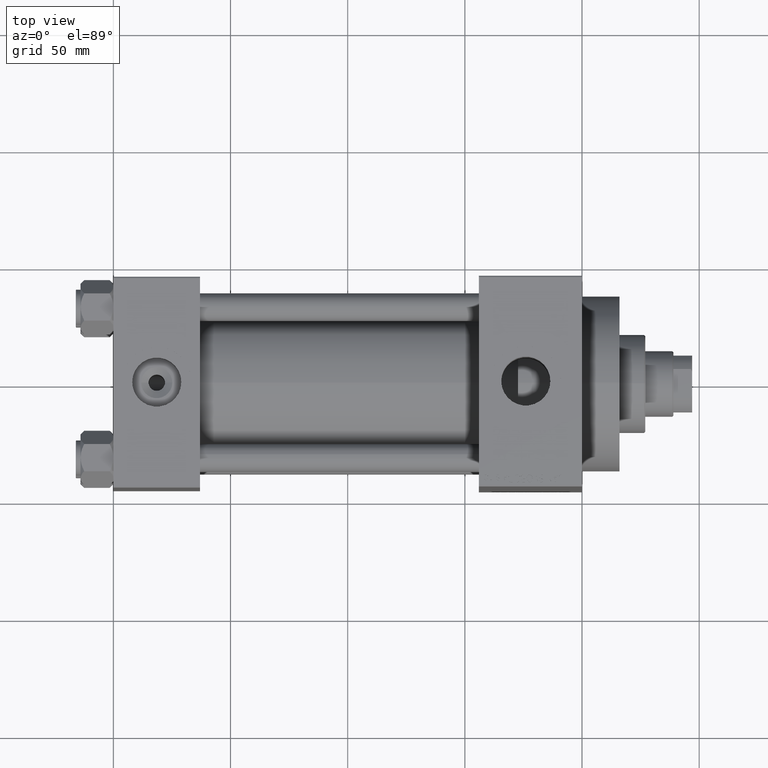
[diagram: clean part render]
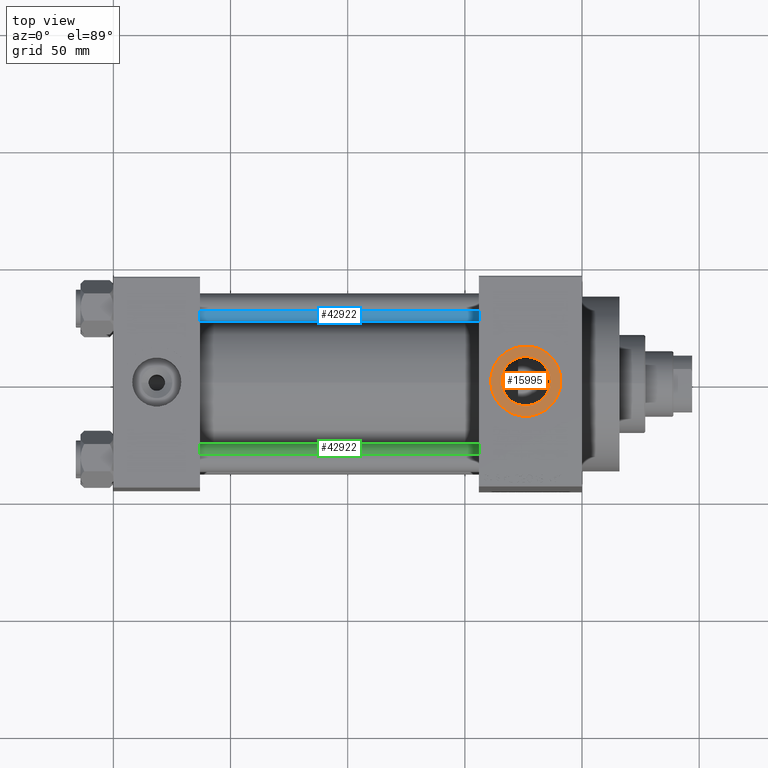
[diagram: same view with three faces highlighted in distinct colors, each labeled with its STEP entity id]
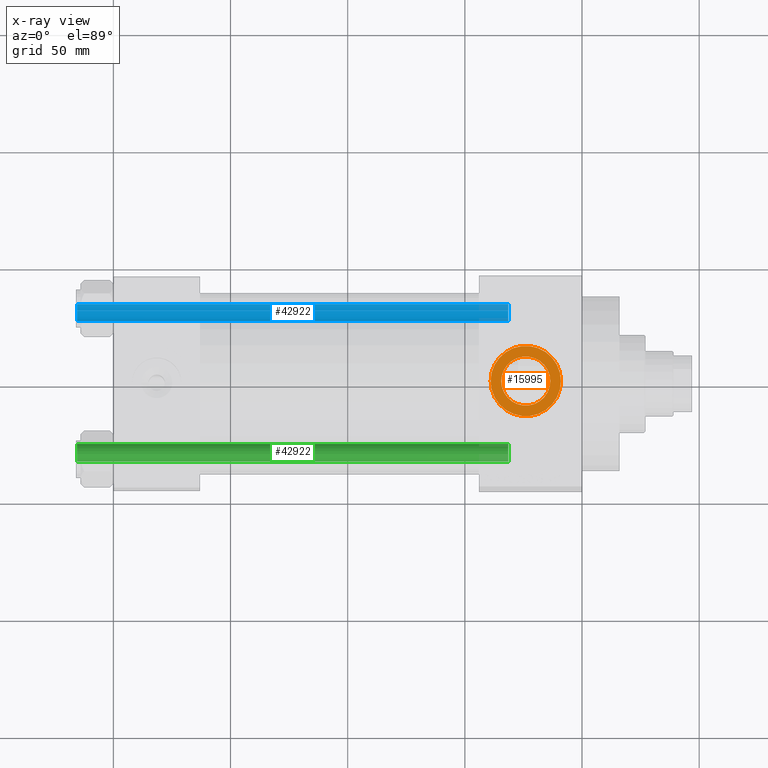
[diagram: x-ray of the same camera — body ghosted, the three highlighted faces saturated]
A machine part, top view with three faces highlighted in distinct colors.
The next image is the same camera in x-ray (body ghosted, the three faces saturated) — at least one of them is partly hidden behind the body in this view.
Their STEP definitions:

[orange] entity #15995 — the highlighted planar face has unit normal (0, 0, 1).
#6550 = AXIS2_PLACEMENT_3D ( 'NONE', #44445, #12084, #34140 ) ;
#6829 = AXIS2_PLACEMENT_3D ( 'NONE', #10123, #38664, #35303 ) ;
#8077 = DIRECTION ( 'NONE',  ( -0.000000000000000000, -0.000000000000000000, -1.000000000000000000 ) ) ;
#8621 = CARTESIAN_POINT ( 'NONE',  ( 176.0000000000000000, -1.094803260394251466E-14, 70.79999999999996874 ) ) ;
#10123 = CARTESIAN_POINT ( 'NONE',  ( 176.0000000000000000, -1.094803260394251466E-14, 70.79999999999996874 ) ) ;
#10310 = ORIENTED_EDGE ( 'NONE', *, *, #17785, .T. ) ;
#10958 = FACE_OUTER_BOUND ( 'NONE', #43455, .T. ) ;
#11420 = PLANE ( 'NONE',  #40951 ) ;
#11745 = DIRECTION ( 'NONE',  ( 1.000000000000000000, 0.000000000000000000, 0.000000000000000000 ) ) ;
#12084 = DIRECTION ( 'NONE',  ( 0.000000000000000000, 0.000000000000000000, 1.000000000000000000 ) ) ;
#12696 = DIRECTION ( 'NONE',  ( -0.000000000000000000, -0.000000000000000000, -1.000000000000000000 ) ) ;
#13293 = VERTEX_POINT ( 'NONE', #45691 ) ;
#15749 = CIRCLE ( 'NONE', #6550, 15.00000000000001421 ) ;
#15995 = ADVANCED_FACE ( 'NONE', ( #17695, #10958 ), #11420, .T. ) ;
#16550 = EDGE_CURVE ( 'NONE', #19073, #26503, #15749, .T. ) ;
#17695 = FACE_BOUND ( 'NONE', #22362, .T. ) ;
#17785 = EDGE_CURVE ( 'NONE', #13293, #30282, #41698, .T. ) ;
#17933 = CARTESIAN_POINT ( 'NONE',  ( 176.0000000000000000, -1.094803260394251466E-14, 70.79999999999996874 ) ) ;
#19073 = VERTEX_POINT ( 'NONE', #26505 ) ;
#21762 = DIRECTION ( 'NONE',  ( 1.000000000000000000, 0.000000000000000000, -0.000000000000000000 ) ) ;
#21911 = AXIS2_PLACEMENT_3D ( 'NONE', #37316, #8077, #26311 ) ;
#22362 = EDGE_LOOP ( 'NONE', ( #32556, #10310 ) ) ;
#23803 = EDGE_CURVE ( 'NONE', #26503, #19073, #23807, .T. ) ;
#23807 = CIRCLE ( 'NONE', #6829, 15.00000000000001421 ) ;
#26311 = DIRECTION ( 'NONE',  ( 1.000000000000000000, 0.000000000000000000, 0.000000000000000000 ) ) ;
#26503 = VERTEX_POINT ( 'NONE', #44465 ) ;
#26505 = CARTESIAN_POINT ( 'NONE',  ( 191.0000000000000000, -1.094803260394251466E-14, 70.79999999999996874 ) ) ;
#30282 = VERTEX_POINT ( 'NONE', #33326 ) ;
#32304 = DIRECTION ( 'NONE',  ( 0.000000000000000000, 0.000000000000000000, 1.000000000000000000 ) ) ;
#32556 = ORIENTED_EDGE ( 'NONE', *, *, #44003, .T. ) ;
#33326 = CARTESIAN_POINT ( 'NONE',  ( 165.5200000000000102, -1.094803260394251466E-14, 70.79999999999996874 ) ) ;
#34104 = ORIENTED_EDGE ( 'NONE', *, *, #23803, .T. ) ;
#34140 = DIRECTION ( 'NONE',  ( 1.000000000000000000, 0.000000000000000000, 0.000000000000000000 ) ) ;
#34815 = ORIENTED_EDGE ( 'NONE', *, *, #16550, .T. ) ;
#35303 = DIRECTION ( 'NONE',  ( 1.000000000000000000, 0.000000000000000000, 0.000000000000000000 ) ) ;
#37316 = CARTESIAN_POINT ( 'NONE',  ( 176.0000000000000000, -1.094803260394251466E-14, 70.79999999999996874 ) ) ;
#38003 = AXIS2_PLACEMENT_3D ( 'NONE', #8621, #12696, #11745 ) ;
#38664 = DIRECTION ( 'NONE',  ( 0.000000000000000000, 0.000000000000000000, 1.000000000000000000 ) ) ;
#40951 = AXIS2_PLACEMENT_3D ( 'NONE', #17933, #32304, #21762 ) ;
#41698 = CIRCLE ( 'NONE', #21911, 10.47999999999998977 ) ;
#42585 = CIRCLE ( 'NONE', #38003, 10.47999999999998977 ) ;
#43455 = EDGE_LOOP ( 'NONE', ( #34815, #34104 ) ) ;
#44003 = EDGE_CURVE ( 'NONE', #30282, #13293, #42585, .T. ) ;
#44445 = CARTESIAN_POINT ( 'NONE',  ( 176.0000000000000000, -1.094803260394251466E-14, 70.79999999999996874 ) ) ;
#44465 = CARTESIAN_POINT ( 'NONE',  ( 160.9999999999999716, -9.111062405221479547E-15, 70.79999999999996874 ) ) ;
#45691 = CARTESIAN_POINT ( 'NONE',  ( 186.4799999999999898, -9.664602758436089169E-15, 70.79999999999996874 ) ) ;

[blue] entity #42922 — the highlighted cylindrical surface (edge-blend (fillet) strip) has radius 6 mm, axis along (-1, -0, 0).
#60 = EDGE_CURVE ( 'NONE', #46532, #3234, #45350, .T. ) ;
#163 = EDGE_CURVE ( 'NONE', #5610, #46532, #34457, .T. ) ;
#756 = VECTOR ( 'NONE', #16604, 1000.000000000000000 ) ;
#1126 = DIRECTION ( 'NONE',  ( -0.000000000000000000, -0.000000000000000000, 1.000000000000000000 ) ) ;
#2233 = VERTEX_POINT ( 'NONE', #33860 ) ;
#2917 = ORIENTED_EDGE ( 'NONE', *, *, #60, .T. ) ;
#3234 = VERTEX_POINT ( 'NONE', #11183 ) ;
#3552 = EDGE_LOOP ( 'NONE', ( #46284, #23198, #2917, #38159 ) ) ;
#4645 = CIRCLE ( 'NONE', #23802, 6.000000000000000888 ) ;
#5610 = VERTEX_POINT ( 'NONE', #18955 ) ;
#8428 = DIRECTION ( 'NONE',  ( -1.000000000000000000, 0.000000000000000000, 0.000000000000000000 ) ) ;
#8808 = DIRECTION ( 'NONE',  ( 1.000000000000000000, 0.000000000000000000, 0.000000000000000000 ) ) ;
#11183 = CARTESIAN_POINT ( 'NONE',  ( -6.000000000000000888, 0.000000000000000000, 0.5000000000000281997 ) ) ;
#16604 = DIRECTION ( 'NONE',  ( -0.000000000000000000, -0.000000000000000000, -1.000000000000000000 ) ) ;
#18854 = LINE ( 'NONE', #22204, #41670 ) ;
#18955 = CARTESIAN_POINT ( 'NONE',  ( 6.000000000000000888, 7.347880794884120722E-16, 184.5000000000000000 ) ) ;
#19615 = AXIS2_PLACEMENT_3D ( 'NONE', #27135, #30258, #8428 ) ;
#22204 = CARTESIAN_POINT ( 'NONE',  ( 6.000000000000000888, 7.347880794884120722E-16, 185.0000000000000000 ) ) ;
#22922 = DIRECTION ( 'NONE',  ( -0.000000000000000000, -0.000000000000000000, -1.000000000000000000 ) ) ;
#23198 = ORIENTED_EDGE ( 'NONE', *, *, #163, .T. ) ;
#23802 = AXIS2_PLACEMENT_3D ( 'NONE', #41631, #1126, #8808 ) ;
#24126 = DIRECTION ( 'NONE',  ( 1.000000000000000000, 0.000000000000000000, 0.000000000000000000 ) ) ;
#26229 = EDGE_CURVE ( 'NONE', #3234, #2233, #4645, .T. ) ;
#27135 = CARTESIAN_POINT ( 'NONE',  ( 0.000000000000000000, 0.000000000000000000, 185.0000000000000000 ) ) ;
#27581 = AXIS2_PLACEMENT_3D ( 'NONE', #39829, #36250, #24126 ) ;
#30258 = DIRECTION ( 'NONE',  ( -0.000000000000000000, -0.000000000000000000, -1.000000000000000000 ) ) ;
#30497 = CARTESIAN_POINT ( 'NONE',  ( -6.000000000000000888, 0.000000000000000000, 185.0000000000000000 ) ) ;
#31819 = CARTESIAN_POINT ( 'NONE',  ( -6.000000000000000888, 0.000000000000000000, 184.5000000000000000 ) ) ;
#33860 = CARTESIAN_POINT ( 'NONE',  ( 6.000000000000000888, 7.347880794884120722E-16, 0.5000000000000281997 ) ) ;
#34457 = CIRCLE ( 'NONE', #27581, 6.000000000000000888 ) ;
#35411 = EDGE_CURVE ( 'NONE', #5610, #2233, #18854, .T. ) ;
#36250 = DIRECTION ( 'NONE',  ( 0.000000000000000000, 0.000000000000000000, -1.000000000000000000 ) ) ;
#37909 = CYLINDRICAL_SURFACE ( 'NONE', #19615, 6.000000000000000888 ) ;
#38159 = ORIENTED_EDGE ( 'NONE', *, *, #26229, .T. ) ;
#39829 = CARTESIAN_POINT ( 'NONE',  ( 0.000000000000000000, 0.000000000000000000, 184.5000000000000000 ) ) ;
#41502 = FACE_OUTER_BOUND ( 'NONE', #3552, .T. ) ;
#41631 = CARTESIAN_POINT ( 'NONE',  ( 0.000000000000000000, 0.000000000000000000, 0.5000000000000281997 ) ) ;
#41670 = VECTOR ( 'NONE', #22922, 1000.000000000000000 ) ;
#42922 = ADVANCED_FACE ( 'NONE', ( #41502 ), #37909, .T. ) ;
#45350 = LINE ( 'NONE', #30497, #756 ) ;
#46284 = ORIENTED_EDGE ( 'NONE', *, *, #35411, .F. ) ;
#46532 = VERTEX_POINT ( 'NONE', #31819 ) ;

[green] entity #42922 — the highlighted cylindrical surface (edge-blend (fillet) strip) has radius 6 mm, axis along (1, 0, 0).
#60 = EDGE_CURVE ( 'NONE', #46532, #3234, #45350, .T. ) ;
#163 = EDGE_CURVE ( 'NONE', #5610, #46532, #34457, .T. ) ;
#756 = VECTOR ( 'NONE', #16604, 1000.000000000000000 ) ;
#1126 = DIRECTION ( 'NONE',  ( -0.000000000000000000, -0.000000000000000000, 1.000000000000000000 ) ) ;
#2233 = VERTEX_POINT ( 'NONE', #33860 ) ;
#2917 = ORIENTED_EDGE ( 'NONE', *, *, #60, .T. ) ;
#3234 = VERTEX_POINT ( 'NONE', #11183 ) ;
#3552 = EDGE_LOOP ( 'NONE', ( #46284, #23198, #2917, #38159 ) ) ;
#4645 = CIRCLE ( 'NONE', #23802, 6.000000000000000888 ) ;
#5610 = VERTEX_POINT ( 'NONE', #18955 ) ;
#8428 = DIRECTION ( 'NONE',  ( -1.000000000000000000, 0.000000000000000000, 0.000000000000000000 ) ) ;
#8808 = DIRECTION ( 'NONE',  ( 1.000000000000000000, 0.000000000000000000, 0.000000000000000000 ) ) ;
#11183 = CARTESIAN_POINT ( 'NONE',  ( -6.000000000000000888, 0.000000000000000000, 0.5000000000000281997 ) ) ;
#16604 = DIRECTION ( 'NONE',  ( -0.000000000000000000, -0.000000000000000000, -1.000000000000000000 ) ) ;
#18854 = LINE ( 'NONE', #22204, #41670 ) ;
#18955 = CARTESIAN_POINT ( 'NONE',  ( 6.000000000000000888, 7.347880794884120722E-16, 184.5000000000000000 ) ) ;
#19615 = AXIS2_PLACEMENT_3D ( 'NONE', #27135, #30258, #8428 ) ;
#22204 = CARTESIAN_POINT ( 'NONE',  ( 6.000000000000000888, 7.347880794884120722E-16, 185.0000000000000000 ) ) ;
#22922 = DIRECTION ( 'NONE',  ( -0.000000000000000000, -0.000000000000000000, -1.000000000000000000 ) ) ;
#23198 = ORIENTED_EDGE ( 'NONE', *, *, #163, .T. ) ;
#23802 = AXIS2_PLACEMENT_3D ( 'NONE', #41631, #1126, #8808 ) ;
#24126 = DIRECTION ( 'NONE',  ( 1.000000000000000000, 0.000000000000000000, 0.000000000000000000 ) ) ;
#26229 = EDGE_CURVE ( 'NONE', #3234, #2233, #4645, .T. ) ;
#27135 = CARTESIAN_POINT ( 'NONE',  ( 0.000000000000000000, 0.000000000000000000, 185.0000000000000000 ) ) ;
#27581 = AXIS2_PLACEMENT_3D ( 'NONE', #39829, #36250, #24126 ) ;
#30258 = DIRECTION ( 'NONE',  ( -0.000000000000000000, -0.000000000000000000, -1.000000000000000000 ) ) ;
#30497 = CARTESIAN_POINT ( 'NONE',  ( -6.000000000000000888, 0.000000000000000000, 185.0000000000000000 ) ) ;
#31819 = CARTESIAN_POINT ( 'NONE',  ( -6.000000000000000888, 0.000000000000000000, 184.5000000000000000 ) ) ;
#33860 = CARTESIAN_POINT ( 'NONE',  ( 6.000000000000000888, 7.347880794884120722E-16, 0.5000000000000281997 ) ) ;
#34457 = CIRCLE ( 'NONE', #27581, 6.000000000000000888 ) ;
#35411 = EDGE_CURVE ( 'NONE', #5610, #2233, #18854, .T. ) ;
#36250 = DIRECTION ( 'NONE',  ( 0.000000000000000000, 0.000000000000000000, -1.000000000000000000 ) ) ;
#37909 = CYLINDRICAL_SURFACE ( 'NONE', #19615, 6.000000000000000888 ) ;
#38159 = ORIENTED_EDGE ( 'NONE', *, *, #26229, .T. ) ;
#39829 = CARTESIAN_POINT ( 'NONE',  ( 0.000000000000000000, 0.000000000000000000, 184.5000000000000000 ) ) ;
#41502 = FACE_OUTER_BOUND ( 'NONE', #3552, .T. ) ;
#41631 = CARTESIAN_POINT ( 'NONE',  ( 0.000000000000000000, 0.000000000000000000, 0.5000000000000281997 ) ) ;
#41670 = VECTOR ( 'NONE', #22922, 1000.000000000000000 ) ;
#42922 = ADVANCED_FACE ( 'NONE', ( #41502 ), #37909, .T. ) ;
#45350 = LINE ( 'NONE', #30497, #756 ) ;
#46284 = ORIENTED_EDGE ( 'NONE', *, *, #35411, .F. ) ;
#46532 = VERTEX_POINT ( 'NONE', #31819 ) ;